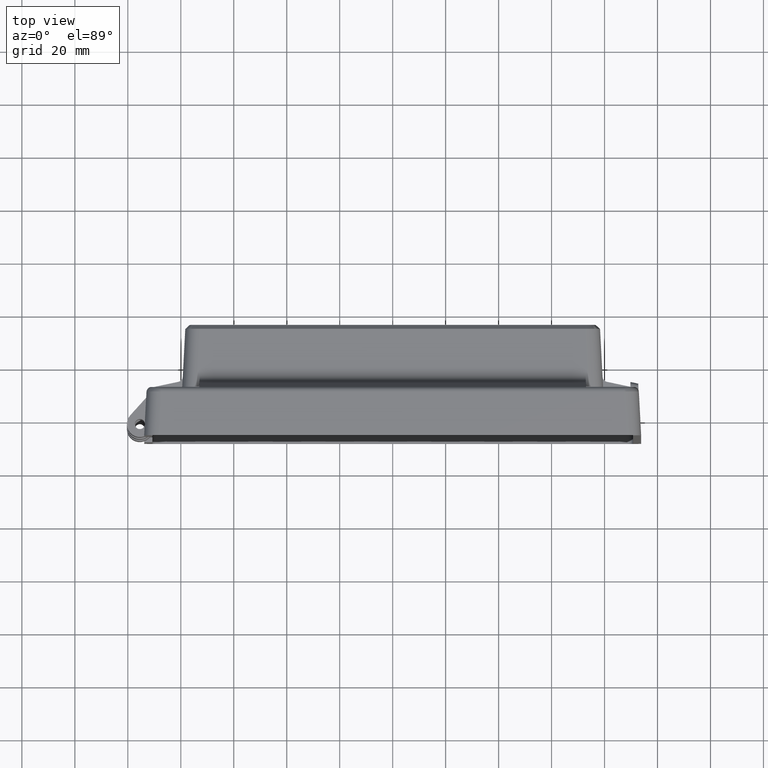
[diagram: clean part render]
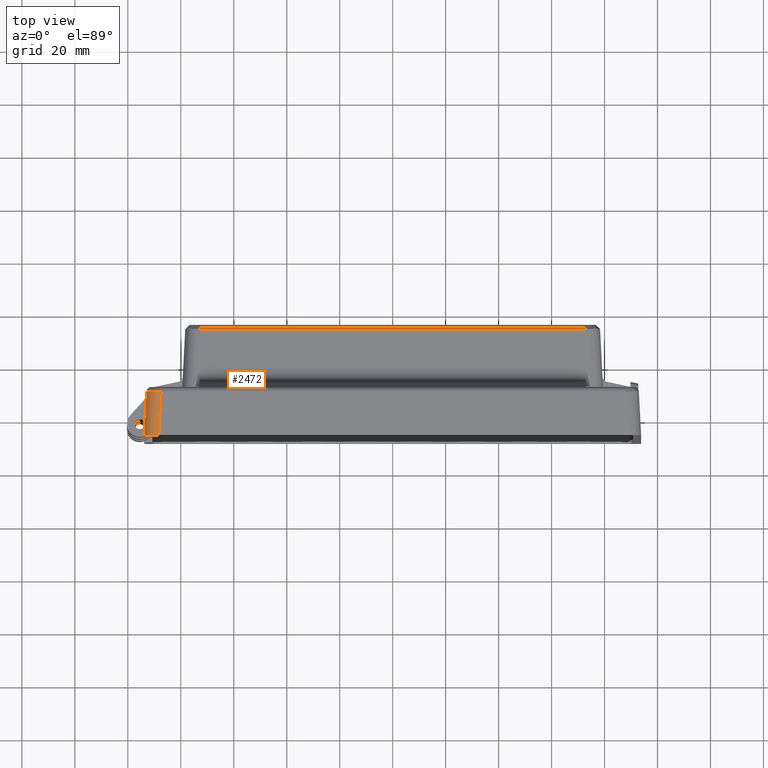
[diagram: same view with one face highlighted and labeled with its STEP entity id]
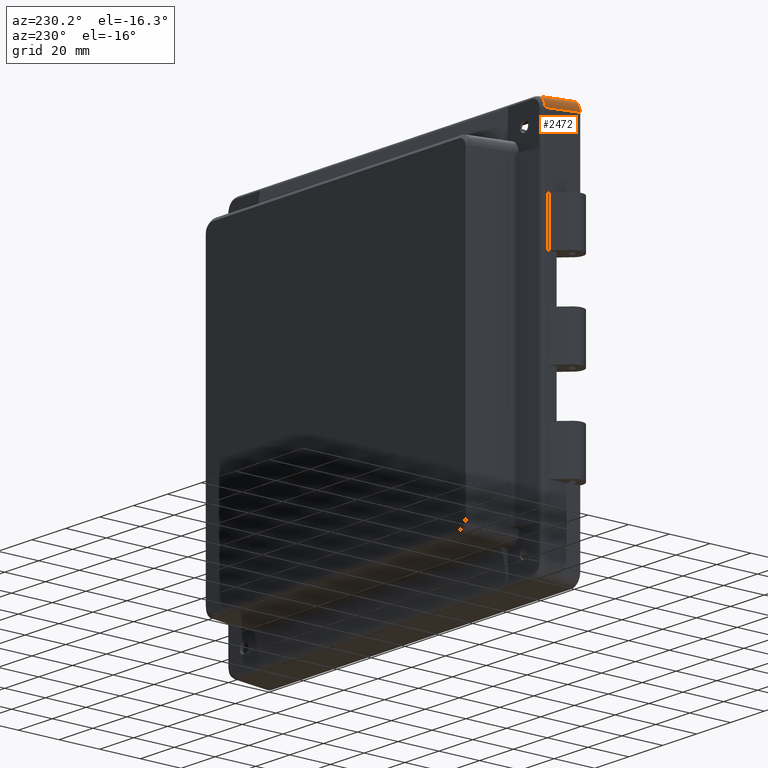
[diagram: same view with one face highlighted and labeled with its STEP entity id]
A machine part, top view. The second image highlights one B-rep face of the part: STEP entity #2472.
A second angle (auxiliary view) of the same face is appended — the face is thin or edge-on in the first view.
In plain terms, the highlighted cylindrical surface (edge-blend (fillet) strip) has radius 5.5 mm, axis along (-0.0523, -0.9973, 0.0523).
Its self-contained STEP definition (entity closure, byte-faithful):
#98 = ORIENTED_EDGE ( 'NONE', *, *, #1462, .F. ) ;
#140 = CARTESIAN_POINT ( 'NONE',  ( -91.54603225163212700, -7.999999999999996400, 95.91926223426438000 ) ) ;
#238 = B_SPLINE_CURVE_WITH_KNOTS ( 'NONE', 3,
 ( #2022, #2586, #3687, #3657, #4863, #5116, #556, #5728, #394, #6140, #5720, #2852, #5861, #5517, #2379, #3537, #271, #4193, #5582, #6234, #6304, #5366 ),
 .UNSPECIFIED., .F., .F.,
 ( 4, 2, 2, 2, 2, 2, 2, 2, 2, 2, 4 ),
 ( 0.0000000000000000000, 0.001072316795614920100, 0.001608475193422404400, 0.002144633591229888800, 0.003216950386844873900, 0.004289267182459858200, 0.005361583978074843800, 0.005897742375882335800, 0.006433900773689828600, 0.007506217569304758600, 0.008578534364919688700 ),
 .UNSPECIFIED. ) ;
#271 = CARTESIAN_POINT ( 'NONE',  ( -92.46597298040919100, 8.510008456179138000, 91.83387884894320100 ) ) ;
#394 = CARTESIAN_POINT ( 'NONE',  ( -90.21174853214751000, 8.518666024107433900, 94.32983745957862700 ) ) ;
#556 = CARTESIAN_POINT ( 'NONE',  ( -89.39842032035289800, 8.503466858863250300, 94.70545084997790800 ) ) ;
#603 = AXIS2_PLACEMENT_3D ( 'NONE', #5516, #2640, #4414 ) ;
#668 = VERTEX_POINT ( 'NONE', #6114 ) ;
#1163 = LINE ( 'NONE', #2687, #7069 ) ;
#1223 = VECTOR ( 'NONE', #6711, 1000.000000000000100 ) ;
#1227 = EDGE_LOOP ( 'NONE', ( #2541, #4589, #4094, #98 ) ) ;
#1403 = CARTESIAN_POINT ( 'NONE',  ( -93.81926223426441400, -7.999999999999996400, 93.64603225163212100 ) ) ;
#1462 = EDGE_CURVE ( 'NONE', #5406, #668, #3565, .T. ) ;
#1626 = CARTESIAN_POINT ( 'NONE',  ( -87.41228325566201800, 9.450015054315038300, 95.00474569681206600 ) ) ;
#1850 = VERTEX_POINT ( 'NONE', #6391 ) ;
#1937 = CARTESIAN_POINT ( 'NONE',  ( -93.81926223426441400, -7.999999999999996400, 90.42679979311419900 ) ) ;
#2022 = CARTESIAN_POINT ( 'NONE',  ( -87.46382428606236200, 8.466553608219493700, 95.05628672721242400 ) ) ;
#2379 = CARTESIAN_POINT ( 'NONE',  ( -92.21955873675062800, 8.518320459562454900, 92.31205463003534800 ) ) ;
#2472 = ADVANCED_FACE ( 'NONE', ( #3613 ), #5397, .T. ) ;
#2508 = CARTESIAN_POINT ( 'NONE',  ( -88.32679979311420500, -7.999999999999996400, 95.91926223426436600 ) ) ;
#2541 = ORIENTED_EDGE ( 'NONE', *, *, #3663, .F. ) ;
#2586 = CARTESIAN_POINT ( 'NONE',  ( -87.82635588033181800, 8.471758235338699100, 95.05601396426313000 ) ) ;
#2640 = DIRECTION ( 'NONE',  ( -0.05226442768871404600, -0.9972646886342374500, 0.05226442768871403900 ) ) ;
#2687 = CARTESIAN_POINT ( 'NONE',  ( -93.41500304783637900, -0.2862752064970360800, 90.02254060668617800 ) ) ;
#2743 = LINE ( 'NONE', #1626, #1223 ) ;
#2819 = CARTESIAN_POINT ( 'NONE',  ( -88.32679979311420500, -7.999999999999996400, 95.91926223426436600 ) ) ;
#2852 = CARTESIAN_POINT ( 'NONE',  ( -91.59715582174892700, 8.528328278042698300, 93.19352856824551200 ) ) ;
#3183 = CARTESIAN_POINT ( 'NONE',  ( -92.95628672721247200, 8.466553608219495400, 89.56382428606225700 ) ) ;
#3257 = DIRECTION ( 'NONE',  ( 0.05226442768871403200, 0.9972646886342372300, -0.05226442768871403200 ) ) ;
#3537 = CARTESIAN_POINT ( 'NONE',  ( -92.38926875151047100, 8.512998491421580400, 91.99551420710982100 ) ) ;
#3565 =( BOUNDED_CURVE ( )  B_SPLINE_CURVE ( 3, ( #2508, #140, #1403, #1937 ),
 .UNSPECIFIED., .F., .F. ) 
 B_SPLINE_CURVE_WITH_KNOTS ( ( 4, 4 ),
 ( 5.499156671652525800, 7.067213942706638700 ),
 .UNSPECIFIED. ) 
 CURVE ( )  GEOMETRIC_REPRESENTATION_ITEM ( )  RATIONAL_B_SPLINE_CURVE ( ( 1.000000000000000000, 0.8053830134673579700, 0.8053830134673579700, 1.000000000000000000 ) ) 
 REPRESENTATION_ITEM ( '' )  );
#3613 = FACE_OUTER_BOUND ( 'NONE', #1227, .T. ) ;
#3657 = CARTESIAN_POINT ( 'NONE',  ( -88.70866844489724200, 8.489211945287509700, 94.91519153360189900 ) ) ;
#3663 = EDGE_CURVE ( 'NONE', #1850, #5406, #2743, .T. ) ;
#3687 = CARTESIAN_POINT ( 'NONE',  ( -88.18278001188559800, 8.478566997330668500, 95.02015568639667700 ) ) ;
#3747 = EDGE_CURVE ( 'NONE', #1850, #6687, #238, .T. ) ;
#4094 = ORIENTED_EDGE ( 'NONE', *, *, #6393, .F. ) ;
#4193 = CARTESIAN_POINT ( 'NONE',  ( -92.67198280231200200, 8.500362678476545100, 91.33901600784935200 ) ) ;
#4414 = DIRECTION ( 'NONE',  ( 0.9986295347545738300, -0.05233595624294393900, 0.0000000000000000000 ) ) ;
#4589 = ORIENTED_EDGE ( 'NONE', *, *, #3747, .T. ) ;
#4863 = CARTESIAN_POINT ( 'NONE',  ( -88.88249579791801100, 8.492837795481669600, 94.87161122400665600 ) ) ;
#5116 = CARTESIAN_POINT ( 'NONE',  ( -89.22715290949344100, 8.499961687211531100, 94.76688323849010900 ) ) ;
#5366 = CARTESIAN_POINT ( 'NONE',  ( -92.95628672721247200, 8.466553608219495400, 89.56382428606225700 ) ) ;
#5397 = CYLINDRICAL_SURFACE ( 'NONE', #603, 5.500000000000005300 ) ;
#5406 = VERTEX_POINT ( 'NONE', #2819 ) ;
#5516 = CARTESIAN_POINT ( 'NONE',  ( -87.41228325566196100, 9.162167294978841500, 89.51228325566191300 ) ) ;
#5517 = CARTESIAN_POINT ( 'NONE',  ( -92.12597007652728100, 8.520661908902475500, 92.46778433853556600 ) ) ;
#5582 = CARTESIAN_POINT ( 'NONE',  ( -92.77781318758266600, 8.492965717516670000, 90.99386841321437200 ) ) ;
#5720 = CARTESIAN_POINT ( 'NONE',  ( -91.09069812343983600, 8.528314473649693600, 93.69964078230862000 ) ) ;
#5728 = CARTESIAN_POINT ( 'NONE',  ( -89.89663291278991200, 8.513186514197054000, 94.49855705851916800 ) ) ;
#5861 = CARTESIAN_POINT ( 'NONE',  ( -91.82456155318851600, 8.526340616572520400, 92.91741237601820600 ) ) ;
#6114 = CARTESIAN_POINT ( 'NONE',  ( -93.81926223426441400, -7.999999999999996400, 90.42679979311419900 ) ) ;
#6140 = CARTESIAN_POINT ( 'NONE',  ( -90.80827244642728100, 8.526249728089805300, 93.93140132969769200 ) ) ;
#6234 = CARTESIAN_POINT ( 'NONE',  ( -92.92015029348677000, 8.478603881678688800, 90.28484431853496500 ) ) ;
#6304 = CARTESIAN_POINT ( 'NONE',  ( -92.95601396698454300, 8.471758183411775900, 89.92635226332868100 ) ) ;
#6391 = CARTESIAN_POINT ( 'NONE',  ( -87.46382428606236200, 8.466553608219493700, 95.05628672721242400 ) ) ;
#6393 = EDGE_CURVE ( 'NONE', #668, #6687, #1163, .T. ) ;
#6687 = VERTEX_POINT ( 'NONE', #3183 ) ;
#6711 = DIRECTION ( 'NONE',  ( -0.05226442768871403900, -0.9972646886342372300, 0.05226442768871402500 ) ) ;
#7069 = VECTOR ( 'NONE', #3257, 1000.000000000000100 ) ;